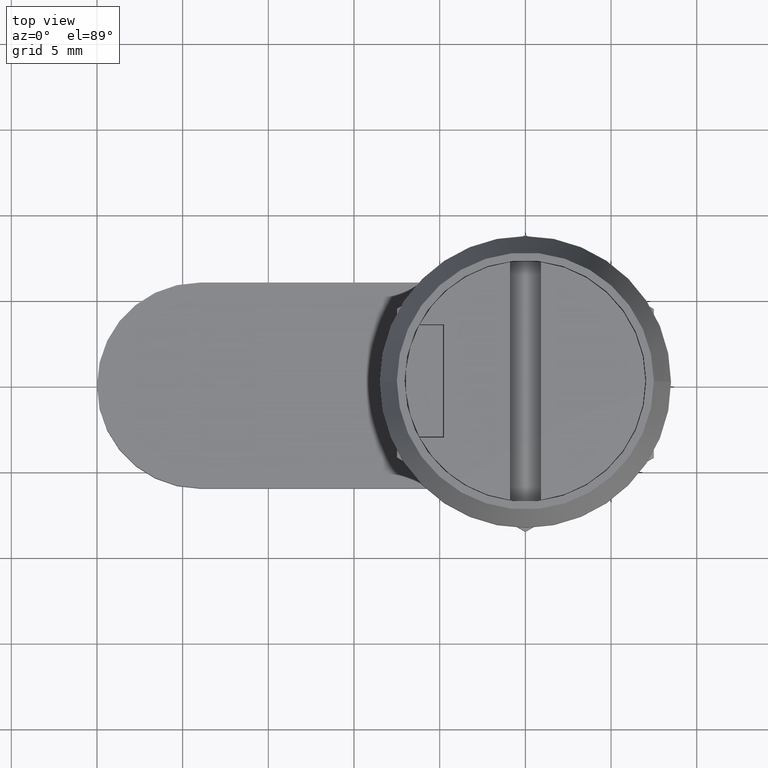
[diagram: clean part render]
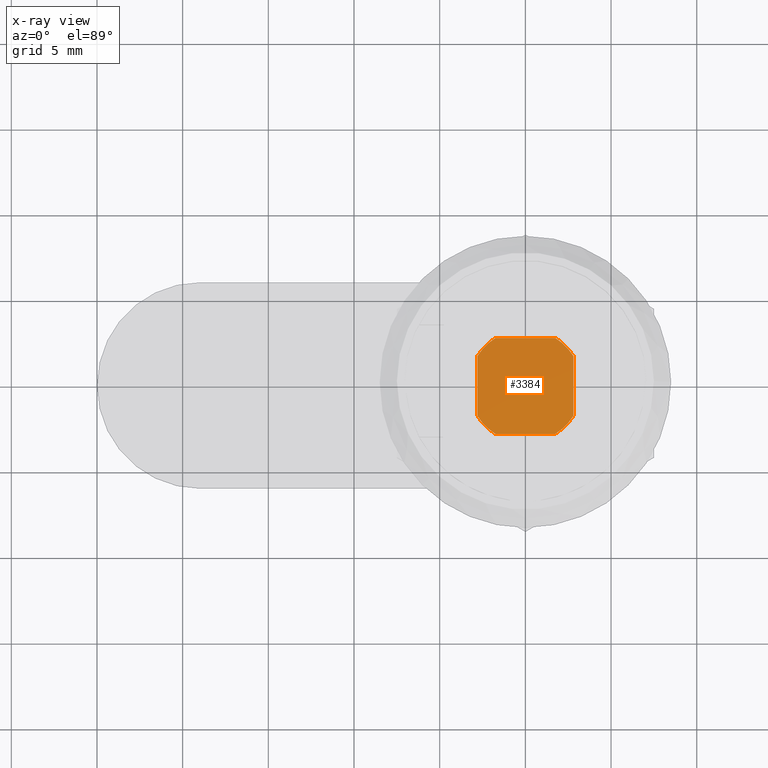
[diagram: x-ray — body ghosted, one internal face saturated and labeled with its STEP entity id]
A machine part, top view, then the same camera in x-ray: the body is ghosted and one INTERNAL B-rep face — a face not visible from any outside direction — is saturated and labeled: STEP entity #3384.
In plain terms, the highlighted planar face has unit normal (0, 0, 1).
Its self-contained STEP definition (entity closure, byte-faithful):
#200 = VECTOR ( 'NONE', #2429, 1000.000000000000000 ) ;
#202 = LINE ( 'NONE', #2892, #3690 ) ;
#347 = CARTESIAN_POINT ( 'NONE',  ( 2.800000000000000300, 1.746424919657296700, 0.0000000000000000000 ) ) ;
#404 = CARTESIAN_POINT ( 'NONE',  ( -1.746424919657297800, 2.799999999999999800, 0.0000000000000000000 ) ) ;
#410 = CARTESIAN_POINT ( 'NONE',  ( 0.0000000000000000000, 0.0000000000000000000, 0.0000000000000000000 ) ) ;
#438 = LINE ( 'NONE', #3034, #2177 ) ;
#479 = VERTEX_POINT ( 'NONE', #2654 ) ;
#510 = CARTESIAN_POINT ( 'NONE',  ( 1.746424919657298700, -2.799999999999999400, 0.0000000000000000000 ) ) ;
#764 = DIRECTION ( 'NONE',  ( 1.000000000000000000, 5.329070518200750600E-015, 0.0000000000000000000 ) ) ;
#786 = CARTESIAN_POINT ( 'NONE',  ( 2.800000000000000300, 1.746424919657296700, 0.0000000000000000000 ) ) ;
#830 = CIRCLE ( 'NONE', #3299, 3.299999999999999800 ) ;
#892 = ORIENTED_EDGE ( 'NONE', *, *, #2922, .F. ) ;
#932 = ORIENTED_EDGE ( 'NONE', *, *, #1801, .F. ) ;
#989 = EDGE_CURVE ( 'NONE', #1430, #1116, #830, .T. ) ;
#1034 = VERTEX_POINT ( 'NONE', #2110 ) ;
#1067 = AXIS2_PLACEMENT_3D ( 'NONE', #410, #2853, #764 ) ;
#1084 = CARTESIAN_POINT ( 'NONE',  ( 1.746424919657298100, 2.799999999999999800, 0.0000000000000000000 ) ) ;
#1108 = EDGE_LOOP ( 'NONE', ( #4039, #932, #1861, #2256, #4294, #4374, #3586, #892 ) ) ;
#1116 = VERTEX_POINT ( 'NONE', #404 ) ;
#1183 = CIRCLE ( 'NONE', #1067, 3.299999999999999800 ) ;
#1222 = DIRECTION ( 'NONE',  ( 0.0000000000000000000, 1.000000000000000000, 0.0000000000000000000 ) ) ;
#1364 = AXIS2_PLACEMENT_3D ( 'NONE', #4204, #4220, #4253 ) ;
#1397 = AXIS2_PLACEMENT_3D ( 'NONE', #2685, #3734, #1657 ) ;
#1430 = VERTEX_POINT ( 'NONE', #2311 ) ;
#1657 = DIRECTION ( 'NONE',  ( 1.000000000000000000, 0.0000000000000000000, -0.0000000000000000000 ) ) ;
#1704 = DIRECTION ( 'NONE',  ( -0.0000000000000000000, -0.0000000000000000000, -1.000000000000000000 ) ) ;
#1737 = CIRCLE ( 'NONE', #1364, 3.299999999999999800 ) ;
#1748 = CARTESIAN_POINT ( 'NONE',  ( 0.0000000000000000000, 0.0000000000000000000, 0.0000000000000000000 ) ) ;
#1801 = EDGE_CURVE ( 'NONE', #2896, #2595, #438, .T. ) ;
#1861 = ORIENTED_EDGE ( 'NONE', *, *, #2180, .F. ) ;
#2071 = CARTESIAN_POINT ( 'NONE',  ( -1.746424919657298100, -2.799999999999999800, 0.0000000000000000000 ) ) ;
#2104 = DIRECTION ( 'NONE',  ( -1.000000000000000000, 0.0000000000000000000, 0.0000000000000000000 ) ) ;
#2110 = CARTESIAN_POINT ( 'NONE',  ( 2.800000000000000300, -1.746424919657296700, 0.0000000000000000000 ) ) ;
#2177 = VECTOR ( 'NONE', #2104, 1000.000000000000000 ) ;
#2180 = EDGE_CURVE ( 'NONE', #1034, #2896, #4465, .T. ) ;
#2256 = ORIENTED_EDGE ( 'NONE', *, *, #3981, .F. ) ;
#2311 = CARTESIAN_POINT ( 'NONE',  ( -2.799999999999999400, 1.746424919657299000, 0.0000000000000000000 ) ) ;
#2402 = DIRECTION ( 'NONE',  ( 1.000000000000000000, 0.0000000000000000000, 0.0000000000000000000 ) ) ;
#2405 = EDGE_CURVE ( 'NONE', #2595, #479, #1737, .T. ) ;
#2415 = VERTEX_POINT ( 'NONE', #1084 ) ;
#2429 = DIRECTION ( 'NONE',  ( 0.0000000000000000000, -1.000000000000000000, 0.0000000000000000000 ) ) ;
#2595 = VERTEX_POINT ( 'NONE', #2071 ) ;
#2654 = CARTESIAN_POINT ( 'NONE',  ( -2.799999999999999400, -1.746424919657298500, 0.0000000000000000000 ) ) ;
#2685 = CARTESIAN_POINT ( 'NONE',  ( -1.040834085586084300E-014, 0.0000000000000000000, 0.0000000000000000000 ) ) ;
#2793 = EDGE_CURVE ( 'NONE', #1116, #2415, #202, .T. ) ;
#2853 = DIRECTION ( 'NONE',  ( -0.0000000000000000000, -0.0000000000000000000, -1.000000000000000000 ) ) ;
#2855 = AXIS2_PLACEMENT_3D ( 'NONE', #3437, #3627, #2402 ) ;
#2892 = CARTESIAN_POINT ( 'NONE',  ( -1.746424919657298100, 2.799999999999999800, 0.0000000000000000000 ) ) ;
#2896 = VERTEX_POINT ( 'NONE', #510 ) ;
#2922 = EDGE_CURVE ( 'NONE', #479, #1430, #3276, .T. ) ;
#3034 = CARTESIAN_POINT ( 'NONE',  ( -1.746424919657298100, -2.799999999999999800, 0.0000000000000000000 ) ) ;
#3093 = VERTEX_POINT ( 'NONE', #786 ) ;
#3167 = FACE_OUTER_BOUND ( 'NONE', #1108, .T. ) ;
#3255 = DIRECTION ( 'NONE',  ( 1.000000000000000000, 0.0000000000000000000, -0.0000000000000000000 ) ) ;
#3276 = LINE ( 'NONE', #3658, #4180 ) ;
#3299 = AXIS2_PLACEMENT_3D ( 'NONE', #1748, #1704, #3824 ) ;
#3384 = ADVANCED_FACE ( 'NONE', ( #3167 ), #3404, .T. ) ;
#3404 = PLANE ( 'NONE',  #1397 ) ;
#3437 = CARTESIAN_POINT ( 'NONE',  ( 0.0000000000000000000, 0.0000000000000000000, 0.0000000000000000000 ) ) ;
#3586 = ORIENTED_EDGE ( 'NONE', *, *, #989, .F. ) ;
#3627 = DIRECTION ( 'NONE',  ( -0.0000000000000000000, -0.0000000000000000000, -1.000000000000000000 ) ) ;
#3658 = CARTESIAN_POINT ( 'NONE',  ( -2.799999999999999400, 1.746424919657299000, 0.0000000000000000000 ) ) ;
#3664 = EDGE_CURVE ( 'NONE', #2415, #3093, #1183, .T. ) ;
#3690 = VECTOR ( 'NONE', #3255, 1000.000000000000000 ) ;
#3734 = DIRECTION ( 'NONE',  ( 0.0000000000000000000, 0.0000000000000000000, 1.000000000000000000 ) ) ;
#3824 = DIRECTION ( 'NONE',  ( 1.000000000000000000, 3.552713678800500900E-015, 0.0000000000000000000 ) ) ;
#3909 = LINE ( 'NONE', #347, #200 ) ;
#3981 = EDGE_CURVE ( 'NONE', #3093, #1034, #3909, .T. ) ;
#4039 = ORIENTED_EDGE ( 'NONE', *, *, #2405, .F. ) ;
#4180 = VECTOR ( 'NONE', #1222, 1000.000000000000000 ) ;
#4204 = CARTESIAN_POINT ( 'NONE',  ( 0.0000000000000000000, 0.0000000000000000000, 0.0000000000000000000 ) ) ;
#4220 = DIRECTION ( 'NONE',  ( -0.0000000000000000000, -0.0000000000000000000, -1.000000000000000000 ) ) ;
#4253 = DIRECTION ( 'NONE',  ( 1.000000000000000000, -1.776356839400250500E-015, 0.0000000000000000000 ) ) ;
#4294 = ORIENTED_EDGE ( 'NONE', *, *, #3664, .F. ) ;
#4374 = ORIENTED_EDGE ( 'NONE', *, *, #2793, .F. ) ;
#4465 = CIRCLE ( 'NONE', #2855, 3.299999999999999800 ) ;